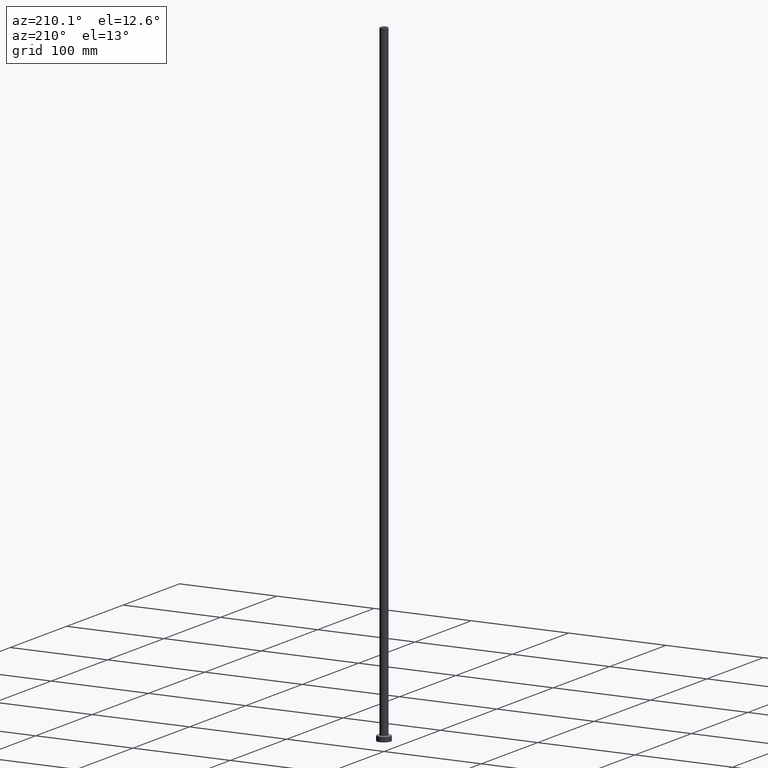
[diagram: clean part render]
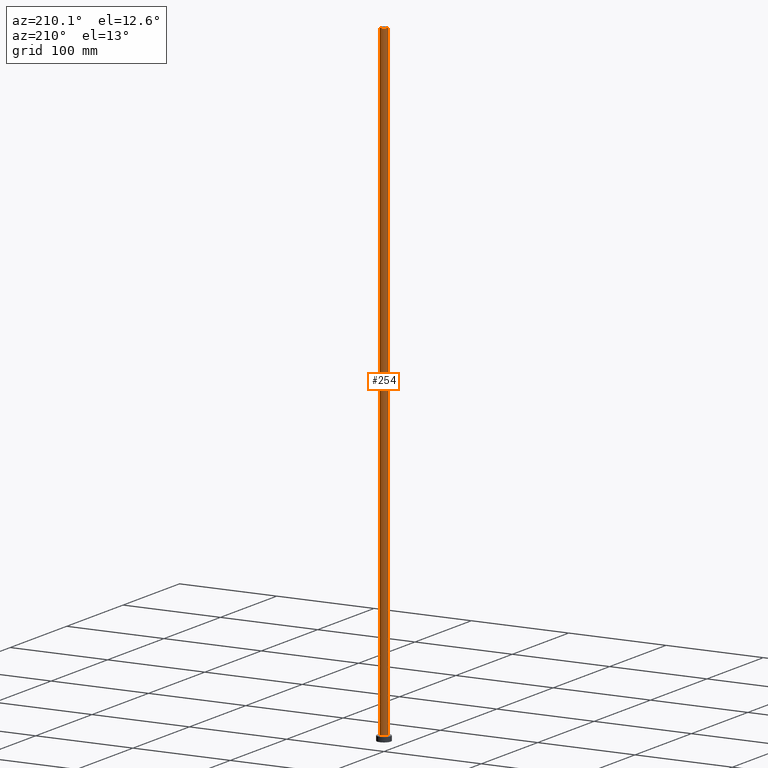
[diagram: same view with one face highlighted and labeled with its STEP entity id]
A machine part, auxiliary view. The second image highlights one B-rep face of the part: STEP entity #254.
In plain terms, the highlighted cylindrical surface (edge-blend (fillet) strip) has radius 4 mm, axis along (-0, -0, -1).
Its self-contained STEP definition (entity closure, byte-faithful):
#10 = EDGE_CURVE ( 'NONE', #198, #122, #230, .T. ) ;
#15 = ORIENTED_EDGE ( 'NONE', *, *, #430, .F. ) ;
#19 = VERTEX_POINT ( 'NONE', #379 ) ;
#21 = FACE_OUTER_BOUND ( 'NONE', #340, .T. ) ;
#67 = CIRCLE ( 'NONE', #428, 4.000000000000000000 ) ;
#70 = AXIS2_PLACEMENT_3D ( 'NONE', #378, #265, #167 ) ;
#91 = CARTESIAN_POINT ( 'NONE',  ( 4.000000000000000000, 4.898587196589411843E-16, 650.0000000000000000 ) ) ;
#101 = ORIENTED_EDGE ( 'NONE', *, *, #270, .T. ) ;
#102 = CARTESIAN_POINT ( 'NONE',  ( 0.000000000000000000, 0.000000000000000000, 650.0000000000000000 ) ) ;
#122 = VERTEX_POINT ( 'NONE', #181 ) ;
#129 = AXIS2_PLACEMENT_3D ( 'NONE', #102, #280, #389 ) ;
#136 = ORIENTED_EDGE ( 'NONE', *, *, #10, .F. ) ;
#143 = DIRECTION ( 'NONE',  ( -0.000000000000000000, -0.000000000000000000, -1.000000000000000000 ) ) ;
#167 = DIRECTION ( 'NONE',  ( -1.000000000000000000, 0.000000000000000000, 0.000000000000000000 ) ) ;
#172 = ORIENTED_EDGE ( 'NONE', *, *, #403, .T. ) ;
#181 = CARTESIAN_POINT ( 'NONE',  ( -4.000000000000000000, 0.000000000000000000, 5.499999999999949374 ) ) ;
#198 = VERTEX_POINT ( 'NONE', #376 ) ;
#204 = VECTOR ( 'NONE', #380, 1000.000000000000000 ) ;
#205 = CARTESIAN_POINT ( 'NONE',  ( -4.000000000000000000, 0.000000000000000000, 650.0000000000000000 ) ) ;
#230 = LINE ( 'NONE', #205, #321 ) ;
#238 = DIRECTION ( 'NONE',  ( 0.000000000000000000, 0.000000000000000000, 1.000000000000000000 ) ) ;
#254 = ADVANCED_FACE ( 'NONE', ( #21 ), #443, .T. ) ;
#265 = DIRECTION ( 'NONE',  ( -0.000000000000000000, -0.000000000000000000, -1.000000000000000000 ) ) ;
#270 = EDGE_CURVE ( 'NONE', #19, #453, #437, .T. ) ;
#280 = DIRECTION ( 'NONE',  ( 0.000000000000000000, 0.000000000000000000, 1.000000000000000000 ) ) ;
#283 = DIRECTION ( 'NONE',  ( 1.000000000000000000, 0.000000000000000000, 0.000000000000000000 ) ) ;
#321 = VECTOR ( 'NONE', #143, 1000.000000000000000 ) ;
#324 = CIRCLE ( 'NONE', #129, 4.000000000000000000 ) ;
#340 = EDGE_LOOP ( 'NONE', ( #15, #101, #172, #136 ) ) ;
#354 = CARTESIAN_POINT ( 'NONE',  ( 4.000000000000000000, 4.898587196589411843E-16, 5.499999999999949374 ) ) ;
#376 = CARTESIAN_POINT ( 'NONE',  ( -4.000000000000000000, 0.000000000000000000, 650.0000000000000000 ) ) ;
#378 = CARTESIAN_POINT ( 'NONE',  ( 0.000000000000000000, 0.000000000000000000, 650.0000000000000000 ) ) ;
#379 = CARTESIAN_POINT ( 'NONE',  ( 4.000000000000000000, 4.898587196589411843E-16, 650.0000000000000000 ) ) ;
#380 = DIRECTION ( 'NONE',  ( -0.000000000000000000, -0.000000000000000000, -1.000000000000000000 ) ) ;
#387 = CARTESIAN_POINT ( 'NONE',  ( 0.000000000000000000, 0.000000000000000000, 5.499999999999949374 ) ) ;
#389 = DIRECTION ( 'NONE',  ( 1.000000000000000000, 0.000000000000000000, 0.000000000000000000 ) ) ;
#403 = EDGE_CURVE ( 'NONE', #453, #122, #67, .T. ) ;
#428 = AXIS2_PLACEMENT_3D ( 'NONE', #387, #238, #283 ) ;
#430 = EDGE_CURVE ( 'NONE', #19, #198, #324, .T. ) ;
#437 = LINE ( 'NONE', #91, #204 ) ;
#443 = CYLINDRICAL_SURFACE ( 'NONE', #70, 4.000000000000000000 ) ;
#453 = VERTEX_POINT ( 'NONE', #354 ) ;